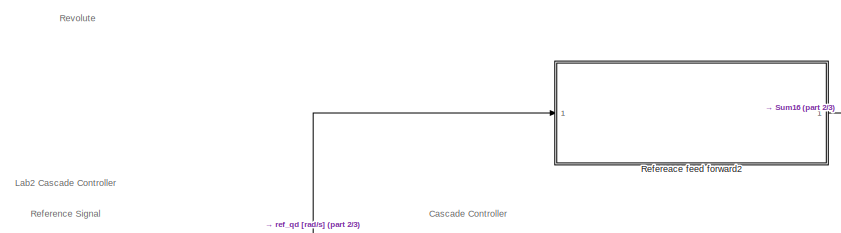
[diagram: root canvas - part 1/3, top left region]
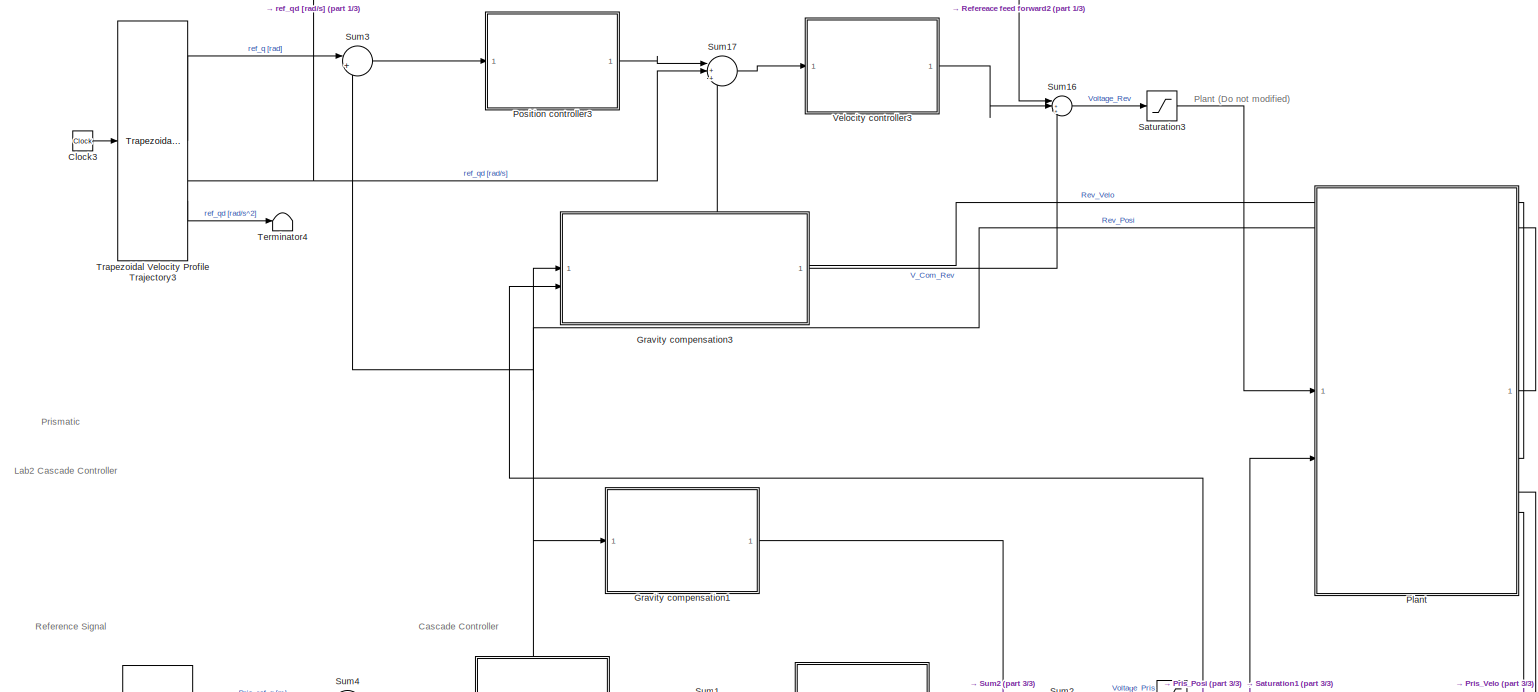
[diagram: root canvas - part 2/3, full width, middle band]
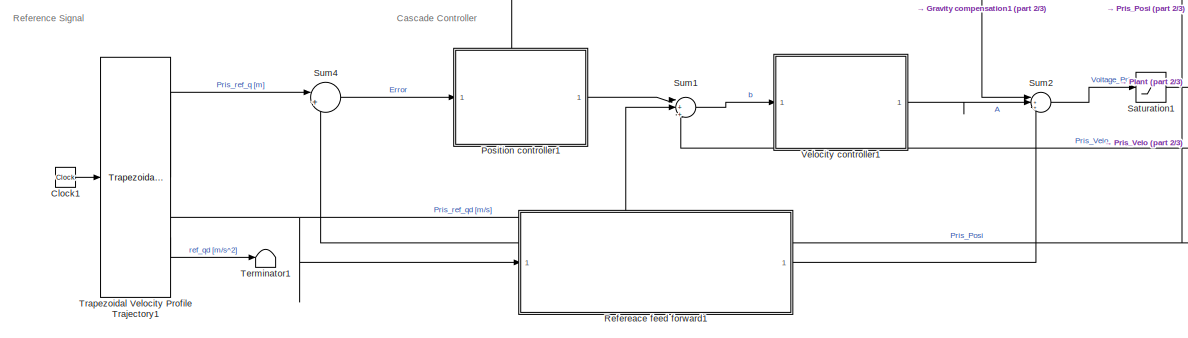
[diagram: root canvas - part 3/3, full width, bottom band]
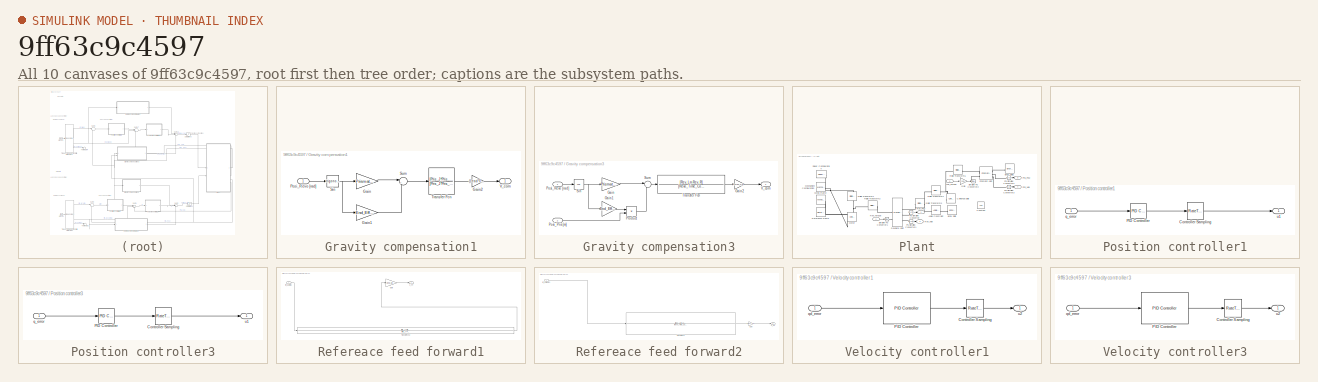
[diagram: thumbnail index - all 10 canvases of the model, root first then tree order]
MODEL slx_9ff63c9c4597
KIND model
CONFIG AbsTol = auto
CONFIG EnableMultiTasking = off
CONFIG FixedStep = 0.001
CONFIG MaxStep = auto
CONFIG MinStep = auto
CONFIG RelTol = 1e-3
CONFIG SampleTimeConstraint = Unconstrained
CONFIG SolverName = ode1be
CONFIG StartTime = 0.0
CONFIG StopTime = inf
BLOCK [Clock] Clock1
BLOCK [Clock] Clock3
BLOCK [SubSystem] Gravity compensation1
BLOCK [Gain] Gravity compensation1/Gain
  Gain = Prismatic_Mass*g
BLOCK [Gain] Gravity compensation1/Gain1
  Gain = End_Effector_Mass*g
BLOCK [Gain] Gravity compensation1/Gain2
  Gain = (Lead*0.001)/((2*pi)*Pris_Km)
BLOCK [Inport] Gravity compensation1/Posi_Revo [rad]
BLOCK [Trigonometry] Gravity compensation1/Sin
BLOCK [Sum] Gravity compensation1/Sum
  Inputs = |++
BLOCK [TransferFcn] Gravity compensation1/Transfer Fcn
  Denominator = [Pris_J*Pris_Time_Constant*Pris_Time_Constant 2*Pris_J*Pris_Time_Constant+Pris_b*Pris_Time_Constant*Pris_Time_Constant Pris_J+2*Pris_b*Pris_Time_Constant Pris_b]
  Numerator = [Pris_J*Pris_Lm Pris_b*Pris_Lm+Pris_R*Pris_J Pris_R*Pris_b+Pris_ke*Pris_kt]
BLOCK [Outport] Gravity compensation1/V_com
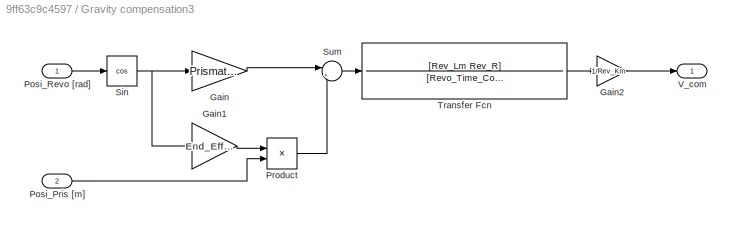
BLOCK [SubSystem] Gravity compensation3
BLOCK [Gain] Gravity compensation3/Gain
  Gain = Prismatic_Mass *g*(Prismatic_Length/2)
BLOCK [Gain] Gravity compensation3/Gain1
  Gain = End_Effector_Mass*g
BLOCK [Gain] Gravity compensation3/Gain2
  Gain = 1/Rev_Km
BLOCK [Inport] Gravity compensation3/Posi_Pris [m]
  Port = 2
BLOCK [Inport] Gravity compensation3/Posi_Revo [rad]
BLOCK [Product] Gravity compensation3/Product
BLOCK [Trigonometry] Gravity compensation3/Sin
  Operator = cos
BLOCK [Sum] Gravity compensation3/Sum
  Inputs = |++
BLOCK [TransferFcn] Gravity compensation3/Transfer Fcn
  Denominator = [Revo_Time_Constant 1]
  Numerator = [Rev_Lm Rev_R]
BLOCK [Outport] Gravity compensation3/V_com
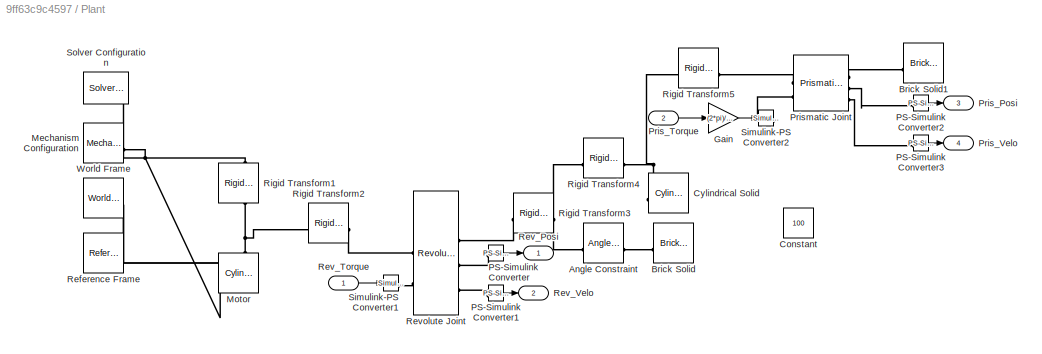
BLOCK [SubSystem] Plant
BLOCK [Reference] Plant/Angle Constraint  REF=sm_lib/Constraints/Angle
Constraint
  Commented = through
  SourceBlock = sm_lib/Constraints/Angle\nConstraint
  SourceType = Angle\nConstraint
BLOCK [Reference] Plant/Brick Solid  REF=sm_lib/Body Elements/Brick Solid
  NameLocation = top
  SourceBlock = sm_lib/Body Elements/Brick Solid
  SourceType = Brick Solid
BLOCK [Reference] Plant/Brick Solid1  REF=sm_lib/Body Elements/Brick Solid
  NameLocation = top
  SourceBlock = sm_lib/Body Elements/Brick Solid
  SourceType = Brick Solid
BLOCK [Constant] Plant/Constant
  Commented = on
  Value = 100
BLOCK [Reference] Plant/Cylindrical Solid  REF=sm_lib/Body Elements/Cylindrical Solid
  NameLocation = top
  SourceBlock = sm_lib/Body Elements/Cylindrical Solid
  SourceType = Cylindrical Solid
BLOCK [Gain] Plant/Gain
  Gain = (2*pi)/(Lead*0.001)
BLOCK [Reference] Plant/Mechanism Configuration  REF=sm_lib/Utilities/Mechanism
Configuration
  SourceBlock = sm_lib/Utilities/Mechanism\nConfiguration
  SourceType = Mechanism\nConfiguration
BLOCK [Reference] Plant/Motor  REF=sm_lib/Body Elements/Cylindrical Solid
  NameLocation = right
  SourceBlock = sm_lib/Body Elements/Cylindrical Solid
  SourceType = Cylindrical Solid
BLOCK [Reference] Plant/PS-Simulink Converter  REF=nesl_utility/PS-Simulink
Converter
  SourceBlock = nesl_utility/PS-Simulink\nConverter
  SourceType = PS-Simulink\nConverter
BLOCK [Reference] Plant/PS-Simulink Converter1  REF=nesl_utility/PS-Simulink
Converter
  SourceBlock = nesl_utility/PS-Simulink\nConverter
  SourceType = PS-Simulink\nConverter
BLOCK [Reference] Plant/PS-Simulink Converter2  REF=nesl_utility/PS-Simulink
Converter
  SourceBlock = nesl_utility/PS-Simulink\nConverter
  SourceType = PS-Simulink\nConverter
BLOCK [Reference] Plant/PS-Simulink Converter3  REF=nesl_utility/PS-Simulink
Converter
  SourceBlock = nesl_utility/PS-Simulink\nConverter
  SourceType = PS-Simulink\nConverter
BLOCK [Outport] Plant/Pris_Posi
  Port = 3
BLOCK [Inport] Plant/Pris_Torque
  Port = 2
BLOCK [Outport] Plant/Pris_Velo
  Port = 4
BLOCK [Reference] Plant/Prismatic Joint  REF=sm_lib/Joints/Prismatic
Joint
  SourceBlock = sm_lib/Joints/Prismatic\nJoint
  SourceType = Prismatic\nJoint
BLOCK [Reference] Plant/Reference Frame  REF=sm_lib/Frames and
Transforms/Reference
Frame
  SourceBlock = sm_lib/Frames and\nTransforms/Reference\nFrame
  SourceType = Reference\nFrame
BLOCK [Outport] Plant/Rev_Posi
BLOCK [Inport] Plant/Rev_Torque
BLOCK [Outport] Plant/Rev_Velo
  Port = 2
BLOCK [Reference] Plant/Revolute Joint  REF=sm_lib/Joints/Revolute Joint
  SourceBlock = sm_lib/Joints/Revolute Joint
  SourceType = Revolute Joint
BLOCK [Reference] Plant/Rigid Transform1  REF=sm_lib/Frames and
Transforms/Rigid
Transform
  NameLocation = right
  SourceBlock = sm_lib/Frames and\nTransforms/Rigid\nTransform
  SourceType = Rigid\nTransform
BLOCK [Reference] Plant/Rigid Transform2  REF=sm_lib/Frames and
Transforms/Rigid
Transform
  SourceBlock = sm_lib/Frames and\nTransforms/Rigid\nTransform
  SourceType = Rigid\nTransform
BLOCK [Reference] Plant/Rigid Transform3  REF=sm_lib/Frames and
Transforms/Rigid
Transform
  SourceBlock = sm_lib/Frames and\nTransforms/Rigid\nTransform
  SourceType = Rigid\nTransform
BLOCK [Reference] Plant/Rigid Transform4  REF=sm_lib/Frames and
Transforms/Rigid
Transform
  SourceBlock = sm_lib/Frames and\nTransforms/Rigid\nTransform
  SourceType = Rigid\nTransform
BLOCK [Reference] Plant/Rigid Transform5  REF=sm_lib/Frames and
Transforms/Rigid
Transform
  SourceBlock = sm_lib/Frames and\nTransforms/Rigid\nTransform
  SourceType = Rigid\nTransform
BLOCK [Reference] Plant/Simulink-PS Converter1  REF=nesl_utility/Simulink-PS
Converter
  SourceBlock = nesl_utility/Simulink-PS\nConverter
  SourceType = Simulink-PS\nConverter
BLOCK [Reference] Plant/Simulink-PS Converter2  REF=nesl_utility/Simulink-PS
Converter
  SourceBlock = nesl_utility/Simulink-PS\nConverter
  SourceType = Simulink-PS\nConverter
BLOCK [Reference] Plant/Solver Configuration  REF=nesl_utility/Solver
Configuration
  SourceBlock = nesl_utility/Solver\nConfiguration
  SourceType = Solver\nConfiguration
BLOCK [Reference] Plant/World Frame  REF=sm_lib/Frames and
Transforms/World Frame
  SourceBlock = sm_lib/Frames and\nTransforms/World Frame
  SourceType = World Frame
BLOCK [SubSystem] Position controller1
BLOCK [RateTransition] Position controller1/Controller Sampling
  OutPortSampleTime = sampling_time*10
BLOCK [Reference] Position controller1/PID Controller  REF=slpidlib/PID Controller
  SourceBlock = slpidlib/PID Controller
  SourceType = PID 1dof
BLOCK [Inport] Position controller1/q_error
BLOCK [Outport] Position controller1/u1
BLOCK [SubSystem] Position controller3
BLOCK [RateTransition] Position controller3/Controller Sampling
  OutPortSampleTime = sampling_time*10
BLOCK [Reference] Position controller3/PID Controller  REF=slpidlib/PID Controller
  Commented = through
  SourceBlock = slpidlib/PID Controller
  SourceType = PID 1dof
BLOCK [Inport] Position controller3/q_error
BLOCK [Outport] Position controller3/u1
BLOCK [SubSystem] Refereace feed forward1
BLOCK [Gain] Refereace feed forward1/Gain
  Gain = (End_Effector_Mass*Lead*0.001)/(2*pi*Pris_Km)
BLOCK [TransferFcn] Refereace feed forward1/Transfer Fcn2
  Denominator = [( Pris_J * Pris_Time_Constant^3) (  3*Pris_J*Pris_Time_Constant^2 + Pris_b*Pris_Time_Constant^3) ( 3*Pris_J*Pris_Time_Constant + 3*Pris_b*Pris_Time_Constant^2) (Pris_J+ 3*Pris_b*Pris_Time_Constant) ( Pris_b)]
  Numerator = [(Pris_J*Pris_Lm) (Pris_b*Pris_Lm+Pris_R*Pris_J) (Pris_R*Pris_b+Pris_ke *Pris_Km)]
BLOCK [Outport] Refereace feed forward1/V_FF
BLOCK [Inport] Refereace feed forward1/ref_qd [m//s]
BLOCK [SubSystem] Refereace feed forward2
BLOCK [Gain] Refereace feed forward2/Gain
  Gain = 1/Rev_Km
BLOCK [TransferFcn] Refereace feed forward2/Transfer Fcn
  Denominator = [Revo_Time_Constant*Revo_Time_Constant 2*Revo_Time_Constant 1]
  Numerator = [(Rev_Lm *I_static) (I_static*Rev_R+Rev_b*Rev_Lm) (Rev_Km *Rev_ke+Rev_b*Rev_R)]
BLOCK [Outport] Refereace feed forward2/V_FF
BLOCK [Inport] Refereace feed forward2/ref_qd [rad//s]
BLOCK [Saturate] Saturation1
  LowerLimit = -2000
  UpperLimit = 2000
BLOCK [Saturate] Saturation3
  LowerLimit = 1000
  UpperLimit = 1000
BLOCK [Sum] Sum1
  Inputs = |++-
BLOCK [Sum] Sum16
  Inputs = |+++
BLOCK [Sum] Sum17
  Inputs = |++-
BLOCK [Sum] Sum2
  Inputs = |+++
BLOCK [Sum] Sum3
  Inputs = |+-
BLOCK [Sum] Sum4
  Inputs = |+-
BLOCK [Terminator] Terminator1
BLOCK [Terminator] Terminator4
BLOCK [Reference] Trapezoidal Velocity Profile Trajectory1  REF=robotcorelib/Trapezoidal Velocity Profile Trajectory
  LibrarySourceBlock = robotutilslib/Trapezoidal Velocity Profile Trajectory
  SourceBlock = robotcorelib/Trapezoidal Velocity Profile Trajectory
  SourceType = robotics.slcore.internal.block.TrapVelTrajSys
BLOCK [Reference] Trapezoidal Velocity Profile Trajectory3  REF=robotcorelib/Trapezoidal Velocity Profile Trajectory
  LibrarySourceBlock = robotutilslib/Trapezoidal Velocity Profile Trajectory
  SourceBlock = robotcorelib/Trapezoidal Velocity Profile Trajectory
  SourceType = robotics.slcore.internal.block.TrapVelTrajSys
BLOCK [SubSystem] Velocity controller1
BLOCK [RateTransition] Velocity controller1/Controller Sampling
  OutPortSampleTime = sampling_time
BLOCK [Reference] Velocity controller1/PID Controller  REF=slpidlib/PID Controller
  SourceBlock = slpidlib/PID Controller
  SourceType = PID 1dof
BLOCK [Inport] Velocity controller1/qd_error
BLOCK [Outport] Velocity controller1/u2
BLOCK [SubSystem] Velocity controller3
BLOCK [RateTransition] Velocity controller3/Controller Sampling
  OutPortSampleTime = sampling_time
BLOCK [Reference] Velocity controller3/PID Controller  REF=slpidlib/PID Controller
  SourceBlock = slpidlib/PID Controller
  SourceType = PID 1dof
BLOCK [Inport] Velocity controller3/qd_error
BLOCK [Outport] Velocity controller3/u2
ANNOTATION (root): Cascade Controller
ANNOTATION (root): Lab2 Cascade Controller
ANNOTATION (root): Plant (Do not modified)
ANNOTATION (root): Prismatic
ANNOTATION (root): Reference Signal
ANNOTATION (root): Revolute
LINE Clock1:1 -> Trapezoidal Velocity Profile Trajectory1:1
LINE Clock3:1 -> Trapezoidal Velocity Profile Trajectory3:1
LINE Gravity compensation1/Gain1:1 -> Gravity compensation1/Sum:2
LINE Gravity compensation1/Gain2:1 -> Gravity compensation1/V_com:1
LINE Gravity compensation1/Gain:1 -> Gravity compensation1/Sum:1
LINE Gravity compensation1/Posi_Revo [rad]:1 -> Gravity compensation1/Sin:1
NET Gravity compensation1/Sin:1 -> Gravity compensation1/Gain1:1, Gravity compensation1/Gain:1
LINE Gravity compensation1/Sum:1 -> Gravity compensation1/Transfer Fcn:1
LINE Gravity compensation1/Transfer Fcn:1 -> Gravity compensation1/Gain2:1
LINE Gravity compensation1:1 -> Sum2:1
LINE Gravity compensation3/Gain1:1 -> Gravity compensation3/Product:1
LINE Gravity compensation3/Gain2:1 -> Gravity compensation3/V_com:1
LINE Gravity compensation3/Gain:1 -> Gravity compensation3/Sum:1
LINE Gravity compensation3/Posi_Pris [m]:1 -> Gravity compensation3/Product:2
LINE Gravity compensation3/Posi_Revo [rad]:1 -> Gravity compensation3/Sin:1
LINE Gravity compensation3/Product:1 -> Gravity compensation3/Sum:2
NET Gravity compensation3/Sin:1 -> Gravity compensation3/Gain1:1, Gravity compensation3/Gain:1
LINE Gravity compensation3/Sum:1 -> Gravity compensation3/Transfer Fcn:1
LINE Gravity compensation3/Transfer Fcn:1 -> Gravity compensation3/Gain2:1
LINE Gravity compensation3:1 -> Sum16:3
LINE Plant/Gain:1 -> Plant/Simulink-PS Converter2:1
LINE Plant/PS-Simulink Converter1:1 -> Plant/Rev_Velo:1
LINE Plant/PS-Simulink Converter2:1 -> Plant/Pris_Posi:1
LINE Plant/PS-Simulink Converter3:1 -> Plant/Pris_Velo:1
LINE Plant/PS-Simulink Converter:1 -> Plant/Rev_Posi:1
LINE Plant/Pris_Torque:1 -> Plant/Gain:1
LINE Plant/Rev_Torque:1 -> Plant/Simulink-PS Converter1:1
NET Plant:1 -> Gravity compensation1:1, Gravity compensation3:1, Sum3:2
LINE Plant:2 -> Sum17:3
NET Plant:3 -> Gravity compensation3:2, Sum4:2
LINE Plant:4 -> Sum1:3
LINE Position controller1/Controller Sampling:1 -> Position controller1/u1:1
LINE Position controller1/PID Controller:1 -> Position controller1/Controller Sampling:1
LINE Position controller1/q_error:1 -> Position controller1/PID Controller:1
LINE Position controller1:1 -> Sum1:1
LINE Position controller3/Controller Sampling:1 -> Position controller3/u1:1
LINE Position controller3/PID Controller:1 -> Position controller3/Controller Sampling:1
LINE Position controller3/q_error:1 -> Position controller3/PID Controller:1
LINE Position controller3:1 -> Sum17:1
LINE Refereace feed forward1/Gain:1 -> Refereace feed forward1/V_FF:1
LINE Refereace feed forward1/Transfer Fcn2:1 -> Refereace feed forward1/Gain:1
LINE Refereace feed forward1/ref_qd [m//s]:1 -> Refereace feed forward1/Transfer Fcn2:1
LINE Refereace feed forward1:1 -> Sum2:3
LINE Refereace feed forward2/Gain:1 -> Refereace feed forward2/V_FF:1
LINE Refereace feed forward2/Transfer Fcn:1 -> Refereace feed forward2/Gain:1
LINE Refereace feed forward2/ref_qd [rad//s]:1 -> Refereace feed forward2/Transfer Fcn:1
LINE Refereace feed forward2:1 -> Sum16:1
LINE Saturation1:1 -> Plant:2
LINE Saturation3:1 -> Plant:1
LINE Sum16:1 -> Saturation3:1
LINE Sum17:1 -> Velocity controller3:1
LINE Sum1:1 -> Velocity controller1:1
LINE Sum2:1 -> Saturation1:1
LINE Sum3:1 -> Position controller3:1
LINE Sum4:1 -> Position controller1:1
LINE Trapezoidal Velocity Profile Trajectory1:1 -> Sum4:1
NET Trapezoidal Velocity Profile Trajectory1:2 -> Refereace feed forward1:1, Sum1:2
LINE Trapezoidal Velocity Profile Trajectory1:3 -> Terminator1:1
LINE Trapezoidal Velocity Profile Trajectory3:1 -> Sum3:1
NET Trapezoidal Velocity Profile Trajectory3:2 -> Refereace feed forward2:1, Sum17:2
LINE Trapezoidal Velocity Profile Trajectory3:3 -> Terminator4:1
LINE Velocity controller1/Controller Sampling:1 -> Velocity controller1/u2:1
LINE Velocity controller1/PID Controller:1 -> Velocity controller1/Controller Sampling:1
LINE Velocity controller1/qd_error:1 -> Velocity controller1/PID Controller:1
LINE Velocity controller1:1 -> Sum2:2
LINE Velocity controller3/Controller Sampling:1 -> Velocity controller3/u2:1
LINE Velocity controller3/PID Controller:1 -> Velocity controller3/Controller Sampling:1
LINE Velocity controller3/qd_error:1 -> Velocity controller3/PID Controller:1
LINE Velocity controller3:1 -> Sum16:2
PNET net1: Plant/Angle Constraint:LConn1 -- Plant/Rigid Transform3:RConn1 -- Plant/Rigid Transform4:LConn1
PLINE Plant/Angle Constraint:RConn1 -- Plant/Brick Solid:RConn1
PLINE Plant/Brick Solid1:RConn1 -- Plant/Prismatic Joint:RConn1
PNET net2: Plant/Cylindrical Solid:RConn1 -- Plant/Rigid Transform4:RConn1 -- Plant/Rigid Transform5:LConn1
PNET net3: Plant/Mechanism Configuration:RConn1 -- Plant/Reference Frame:RConn1 -- Plant/Rigid Transform1:LConn1 -- Plant/Solver Configuration:RConn1 -- Plant/World Frame:RConn1
PNET net4: Plant/Motor:RConn1 -- Plant/Rigid Transform1:RConn1 -- Plant/Rigid Transform2:LConn1
PLINE Plant/PS-Simulink Converter1:LConn1 -- Plant/Revolute Joint:RConn3
PLINE Plant/PS-Simulink Converter2:LConn1 -- Plant/Prismatic Joint:RConn2
PLINE Plant/PS-Simulink Converter3:LConn1 -- Plant/Prismatic Joint:RConn3
PLINE Plant/PS-Simulink Converter:LConn1 -- Plant/Revolute Joint:RConn2
PLINE Plant/Prismatic Joint:LConn1 -- Plant/Rigid Transform5:RConn1
PLINE Plant/Prismatic Joint:LConn2 -- Plant/Simulink-PS Converter2:RConn1
PLINE Plant/Revolute Joint:LConn1 -- Plant/Rigid Transform2:RConn1
PLINE Plant/Revolute Joint:LConn2 -- Plant/Simulink-PS Converter1:RConn1
PLINE Plant/Revolute Joint:RConn1 -- Plant/Rigid Transform3:LConn1
note: NET lines group one-source signal fan-out (src -> all destinations, sorted); 1:1 wires keep LINE; PNET lines group multi-terminal physical nets as a canonical sorted terminal list (undirected conserving connections); 2-terminal nets keep the pairwise PLINE form
